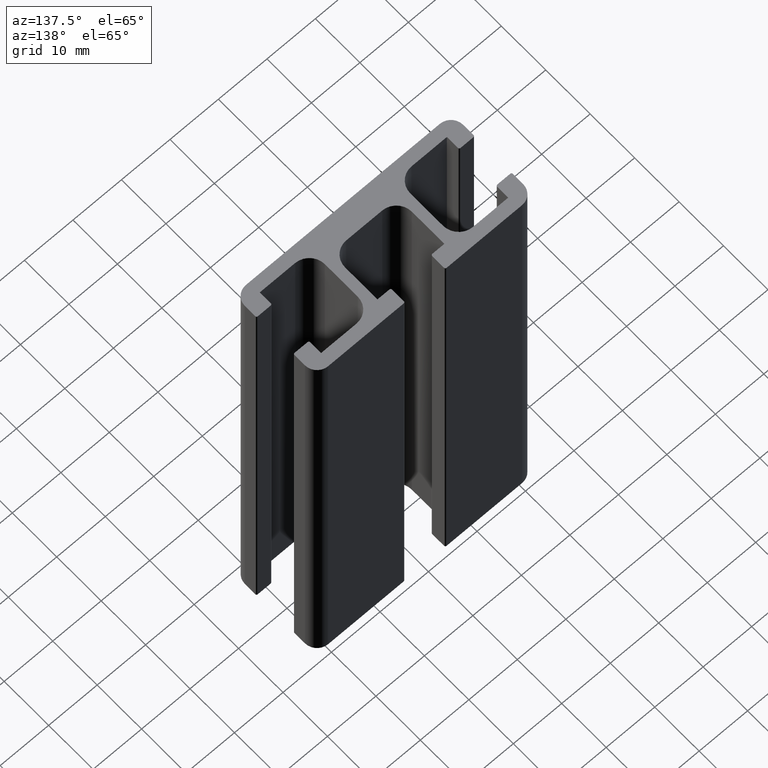
[diagram: clean part render]
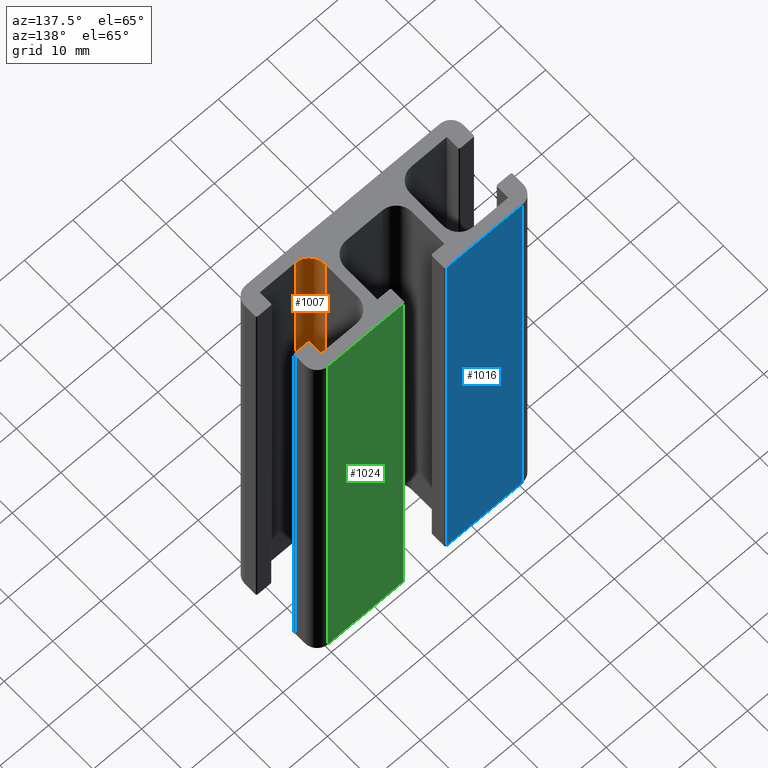
[diagram: same view with three faces highlighted in distinct colors, each labeled with its STEP entity id]
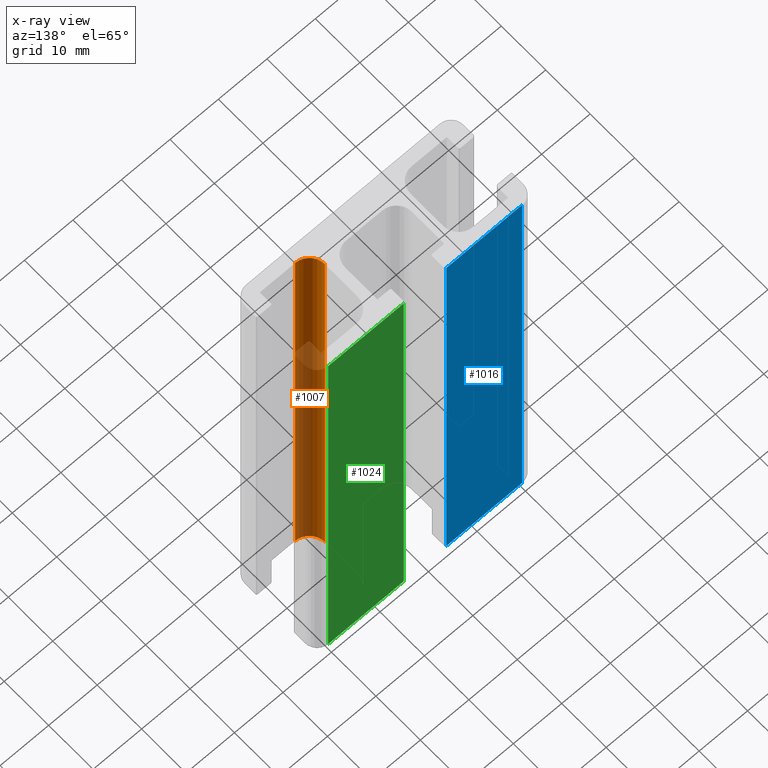
[diagram: x-ray of the same camera — body ghosted, the three highlighted faces saturated]
A machine part, auxiliary view with three faces highlighted in distinct colors.
The next image is the same camera in x-ray (body ghosted, the three faces saturated) — at least one of them is partly hidden behind the body in this view.
Their STEP definitions:

[orange] entity #1007 — the highlighted cylindrical surface (edge-blend (fillet) strip) has radius 3.2 mm, axis along (0, 0, 1).
#75=FACE_OUTER_BOUND('',#127,.T.);
#127=EDGE_LOOP('',(#775,#776,#777,#778));
#214=LINE('',#1615,#320);
#216=LINE('',#1621,#322);
#320=VECTOR('',#1306,100.);
#322=VECTOR('',#1312,100.);
#387=CIRCLE('',#1088,3.1999999999936);
#388=CIRCLE('',#1089,3.1999999999936);
#469=VERTEX_POINT('',#1612);
#470=VERTEX_POINT('',#1614);
#471=VERTEX_POINT('',#1618);
#472=VERTEX_POINT('',#1620);
#596=EDGE_CURVE('',#470,#469,#214,.T.);
#598=EDGE_CURVE('',#471,#469,#387,.T.);
#599=EDGE_CURVE('',#472,#471,#216,.T.);
#600=EDGE_CURVE('',#470,#472,#388,.T.);
#775=ORIENTED_EDGE('',*,*,#598,.F.);
#776=ORIENTED_EDGE('',*,*,#599,.F.);
#777=ORIENTED_EDGE('',*,*,#600,.F.);
#778=ORIENTED_EDGE('',*,*,#596,.T.);
#968=CYLINDRICAL_SURFACE('',#1087,3.1999999999936);
#1007=ADVANCED_FACE('',(#75),#968,.F.);
#1087=AXIS2_PLACEMENT_3D('',#1617,#1308,#1309);
#1088=AXIS2_PLACEMENT_3D('',#1619,#1310,#1311);
#1089=AXIS2_PLACEMENT_3D('',#1622,#1313,#1314);
#1306=DIRECTION('',(0.,0.,1.));
#1308=DIRECTION('center_axis',(0.,0.,1.));
#1309=DIRECTION('ref_axis',(-1.,-1.99996269545766E-12,0.));
#1310=DIRECTION('center_axis',(0.,0.,-1.));
#1311=DIRECTION('ref_axis',(-1.,-1.99996269545766E-12,0.));
#1312=DIRECTION('',(0.,0.,1.));
#1313=DIRECTION('center_axis',(0.,0.,1.));
#1314=DIRECTION('ref_axis',(-1.,-1.99996269545766E-12,0.));
#1612=CARTESIAN_POINT('',(8.8,-3.70000000000002,100.));
#1614=CARTESIAN_POINT('',(8.8,-3.70000000000002,0.));
#1615=CARTESIAN_POINT('',(8.8,-3.70000000000002,0.));
#1617=CARTESIAN_POINT('Origin',(11.9999999999936,-3.69999999999362,0.));
#1618=CARTESIAN_POINT('',(12.,-6.89999999998722,100.));
#1619=CARTESIAN_POINT('Origin',(11.9999999999936,-3.69999999999362,100.));
#1620=CARTESIAN_POINT('',(12.,-6.89999999998722,0.));
#1621=CARTESIAN_POINT('',(12.,-6.89999999998722,0.));
#1622=CARTESIAN_POINT('Origin',(11.9999999999936,-3.69999999999362,0.));

[blue] entity #1016 — the highlighted planar face has unit normal (0, 1, 0).
#36=PLANE('',#1106);
#84=FACE_OUTER_BOUND('',#136,.T.);
#136=EDGE_LOOP('',(#811,#812,#813,#814));
#150=LINE('',#1436,#256);
#233=LINE('',#1673,#339);
#234=LINE('',#1675,#340);
#235=LINE('',#1676,#341);
#256=VECTOR('',#1136,100.);
#339=VECTOR('',#1365,15.5999999999995);
#340=VECTOR('',#1366,100.);
#341=VECTOR('',#1367,15.5999999999995);
#406=VERTEX_POINT('',#1430);
#408=VERTEX_POINT('',#1434);
#489=VERTEX_POINT('',#1672);
#490=VERTEX_POINT('',#1674);
#508=EDGE_CURVE('',#406,#408,#150,.T.);
#625=EDGE_CURVE('',#489,#408,#233,.T.);
#626=EDGE_CURVE('',#489,#490,#234,.T.);
#627=EDGE_CURVE('',#490,#406,#235,.T.);
#811=ORIENTED_EDGE('',*,*,#508,.T.);
#812=ORIENTED_EDGE('',*,*,#625,.F.);
#813=ORIENTED_EDGE('',*,*,#626,.T.);
#814=ORIENTED_EDGE('',*,*,#627,.T.);
#1016=ADVANCED_FACE('',(#84),#36,.T.);
#1106=AXIS2_PLACEMENT_3D('',#1671,#1363,#1364);
#1136=DIRECTION('',(0.,0.,-1.));
#1363=DIRECTION('center_axis',(0.,1.,0.));
#1364=DIRECTION('ref_axis',(-1.,0.,0.));
#1365=DIRECTION('',(1.,0.,0.));
#1366=DIRECTION('',(0.,0.,1.));
#1367=DIRECTION('',(1.,0.,0.));
#1430=CARTESIAN_POINT('',(-4.40000000000047,9.24999999998999,100.));
#1434=CARTESIAN_POINT('',(-4.40000000000047,9.24999999998999,0.));
#1436=CARTESIAN_POINT('',(-4.40000000000049,9.25,0.));
#1671=CARTESIAN_POINT('Origin',(20.,9.25,0.));
#1672=CARTESIAN_POINT('',(-20.,9.25,0.));
#1673=CARTESIAN_POINT('',(10.,9.25,0.));
#1674=CARTESIAN_POINT('',(-20.,9.25,100.));
#1675=CARTESIAN_POINT('',(-20.,9.25,0.));
#1676=CARTESIAN_POINT('',(10.,9.25,100.));

[green] entity #1024 — the highlighted planar face has unit normal (0, 1, 0).
#42=PLANE('',#1120);
#92=FACE_OUTER_BOUND('',#144,.T.);
#144=EDGE_LOOP('',(#889,#890,#891,#892));
#151=LINE('',#1442,#257);
#243=LINE('',#1698,#349);
#251=LINE('',#1719,#357);
#252=LINE('',#1720,#358);
#257=VECTOR('',#1141,100.);
#349=VECTOR('',#1387,15.6000000000005);
#357=VECTOR('',#1411,100.);
#358=VECTOR('',#1412,15.6000000000005);
#409=VERTEX_POINT('',#1438);
#411=VERTEX_POINT('',#1441);
#498=VERTEX_POINT('',#1696);
#503=VERTEX_POINT('',#1718);
#510=EDGE_CURVE('',#409,#411,#151,.T.);
#639=EDGE_CURVE('',#409,#498,#243,.T.);
#649=EDGE_CURVE('',#503,#498,#251,.T.);
#650=EDGE_CURVE('',#411,#503,#252,.T.);
#889=ORIENTED_EDGE('',*,*,#510,.F.);
#890=ORIENTED_EDGE('',*,*,#639,.T.);
#891=ORIENTED_EDGE('',*,*,#649,.F.);
#892=ORIENTED_EDGE('',*,*,#650,.F.);
#1024=ADVANCED_FACE('',(#92),#42,.T.);
#1120=AXIS2_PLACEMENT_3D('',#1717,#1409,#1410);
#1141=DIRECTION('',(0.,0.,-1.));
#1387=DIRECTION('',(1.,0.,0.));
#1409=DIRECTION('center_axis',(0.,1.,0.));
#1410=DIRECTION('ref_axis',(-1.,0.,0.));
#1411=DIRECTION('',(0.,0.,1.));
#1412=DIRECTION('',(1.,0.,0.));
#1438=CARTESIAN_POINT('',(4.39999999999952,9.24999999998997,100.));
#1441=CARTESIAN_POINT('',(4.39999999999952,9.24999999998997,0.));
#1442=CARTESIAN_POINT('',(4.39999999999951,9.25,0.));
#1696=CARTESIAN_POINT('',(20.,9.25,100.));
#1698=CARTESIAN_POINT('',(10.,9.25,100.));
#1717=CARTESIAN_POINT('Origin',(20.,9.25,0.));
#1718=CARTESIAN_POINT('',(20.,9.25,0.));
#1719=CARTESIAN_POINT('',(20.,9.25,0.));
#1720=CARTESIAN_POINT('',(10.,9.25,0.));